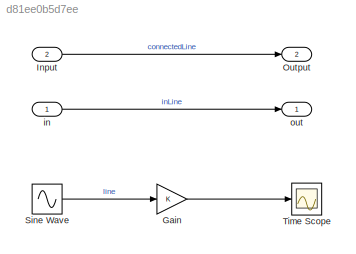
MODEL slx_d81ee0b5d7ee
KIND model
CONFIG AbsTol = auto
CONFIG EnableMultiTasking = off
CONFIG FixedStep = auto
CONFIG MaxStep = auto
CONFIG MinStep = auto
CONFIG RelTol = 1e-3
CONFIG SampleTimeConstraint = Unconstrained
CONFIG SolverName = VariableStepAuto
CONFIG StartTime = 0.0
CONFIG StopTime = 10.0
BLOCK [Gain] Gain
BLOCK [Inport] Input
  Port = 2
BLOCK [Outport] Output
  Port = 2
BLOCK [Sin] Sine Wave
  SampleTime = 0
BLOCK [Scope] Time Scope
  DefaultConfigurationName = spbscopes.TimeScopeBlockCfg
  Floating = off
  NumInputPorts = 1
  ScopeSpecificationString = spbscopes.TimeScopeBlockCfg('CurrentConfiguration', extmgr.ConfigurationSet(extmgr.Configuration('Core','General UI',true,'FigureColor',[0.156862745098039 0.156862745098039 0.156862745098039]),extmgr.Configuration('Core','Source UI',true),extmgr.Configuration('Sources','WiredSimulink',true),extmgr.Configuration('Visuals','Time Domain',true,'DisplayPropertyDefaults',struct('MinYLimReal','-10','MaxY...<+1346ch>
  UserDataPersistent = on
BLOCK [Inport] in 
BLOCK [Outport] out 
LINE Gain:1 -> Time Scope:1
LINE Input:1 -> Output:1
LINE Sine Wave:1 -> Gain:1
LINE in :1 -> out :1
